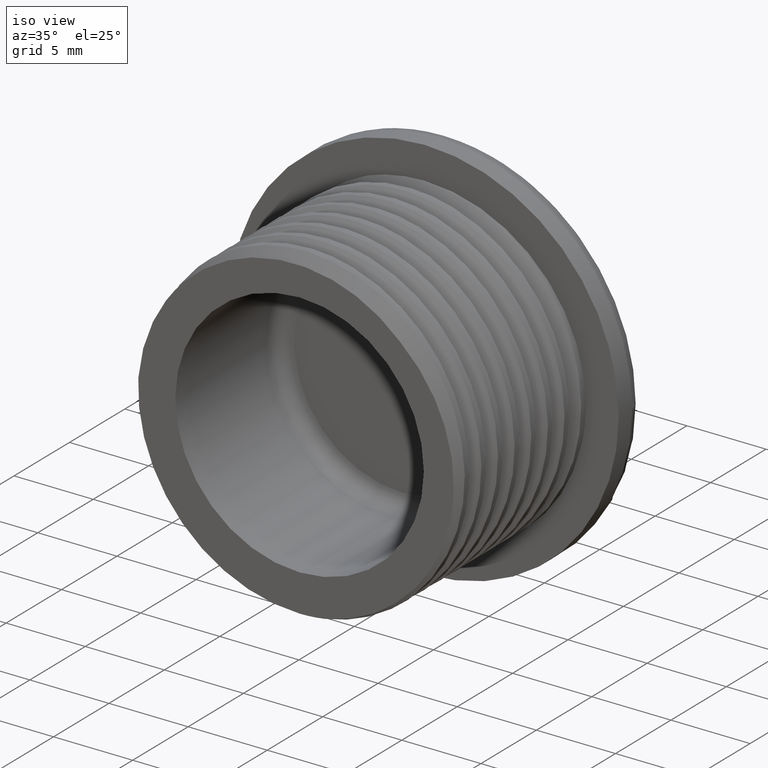
[diagram: clean part render]
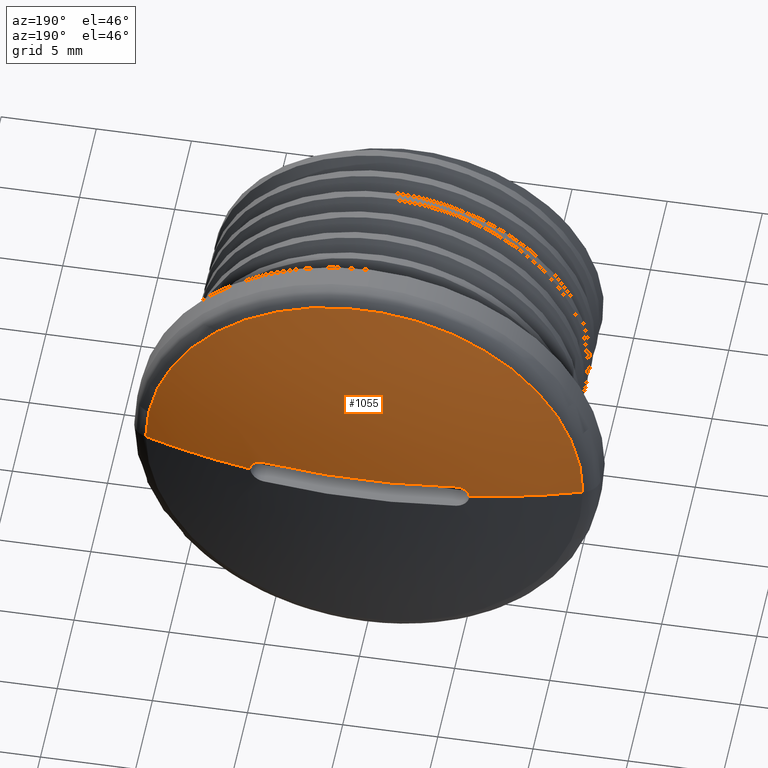
[diagram: tour spotlight — one face highlighted and labeled with its STEP entity id]
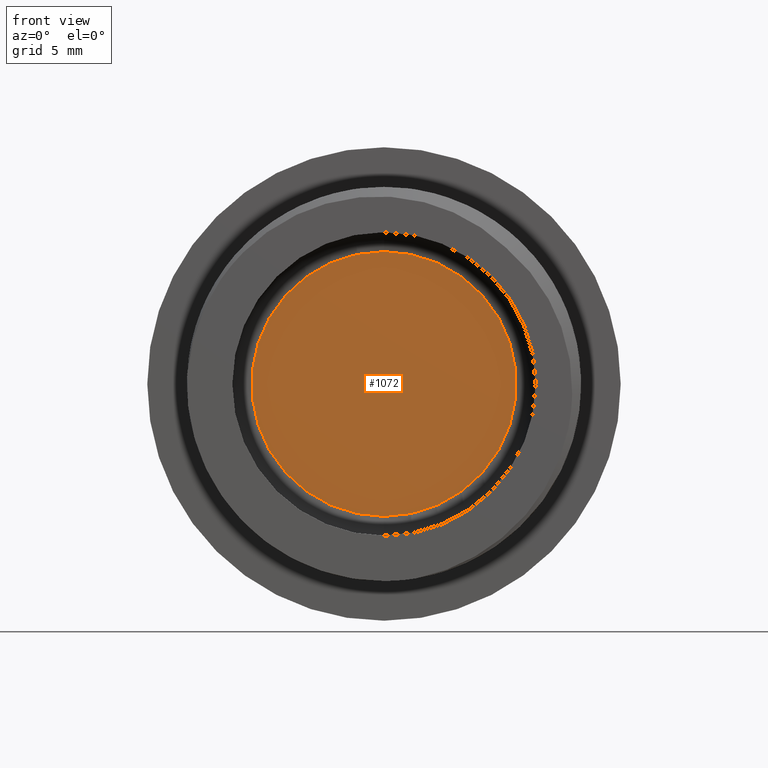
[diagram: tour spotlight — one face highlighted and labeled with its STEP entity id]
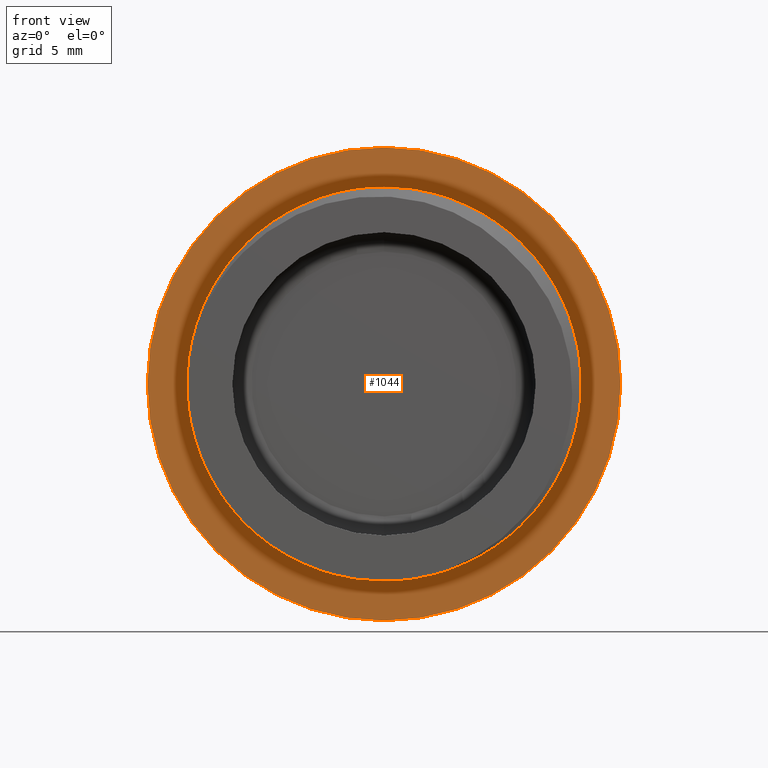
[diagram: tour spotlight — one face highlighted and labeled with its STEP entity id]
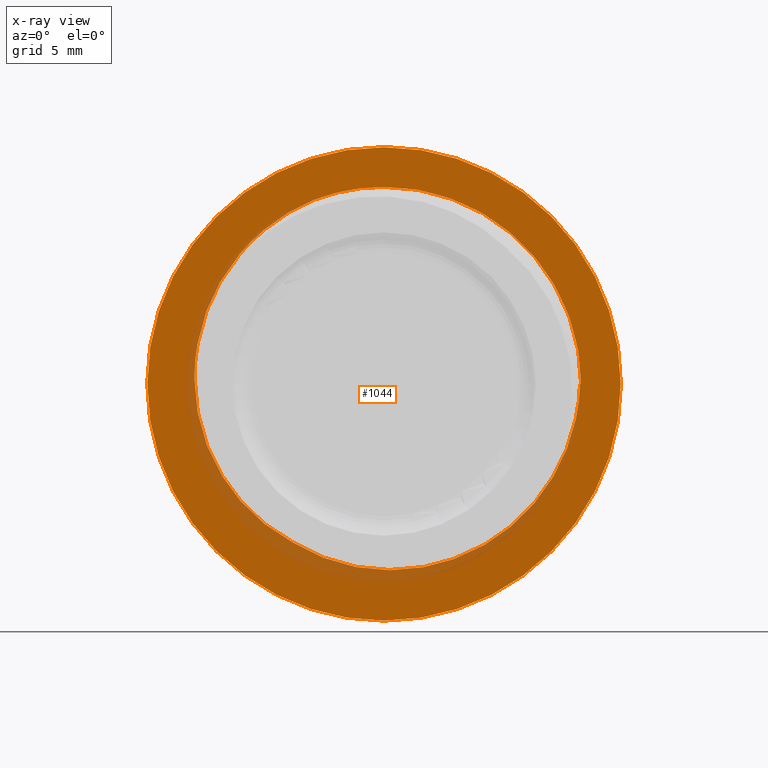
[diagram: x-ray of the same camera — body ghosted, this tour face saturated]
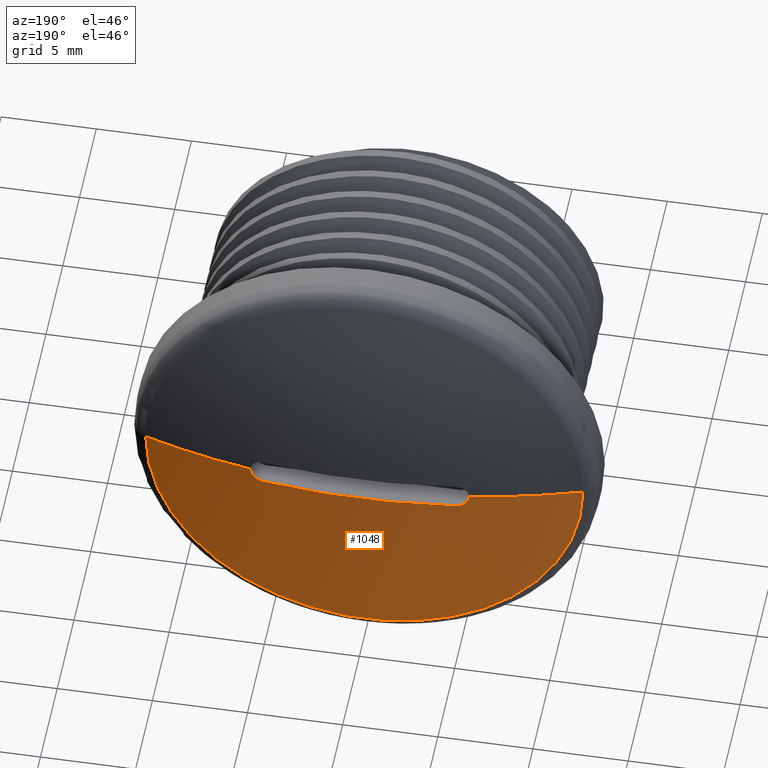
[diagram: tour spotlight — one face highlighted and labeled with its STEP entity id]
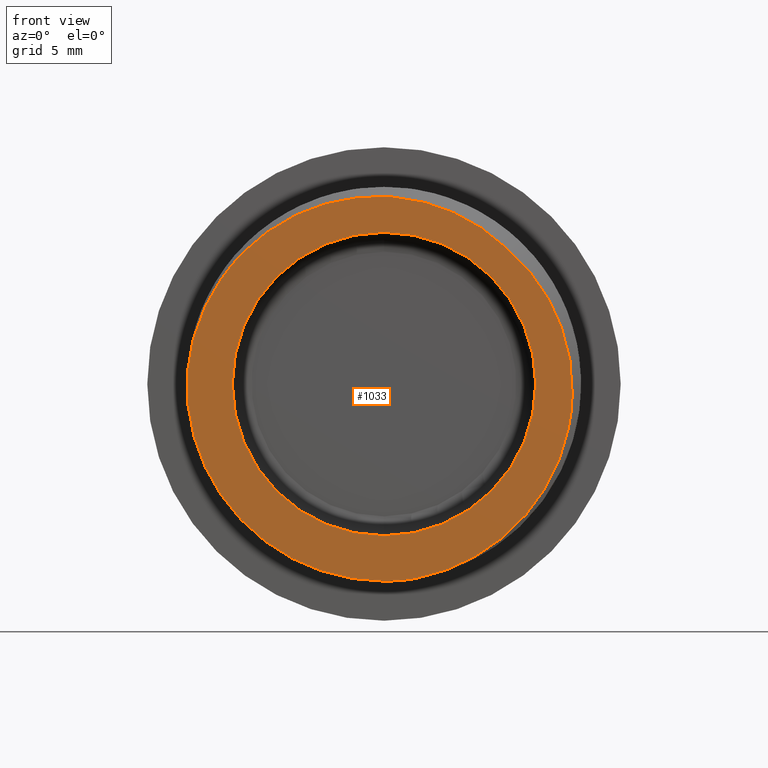
[diagram: tour spotlight — one face highlighted and labeled with its STEP entity id]
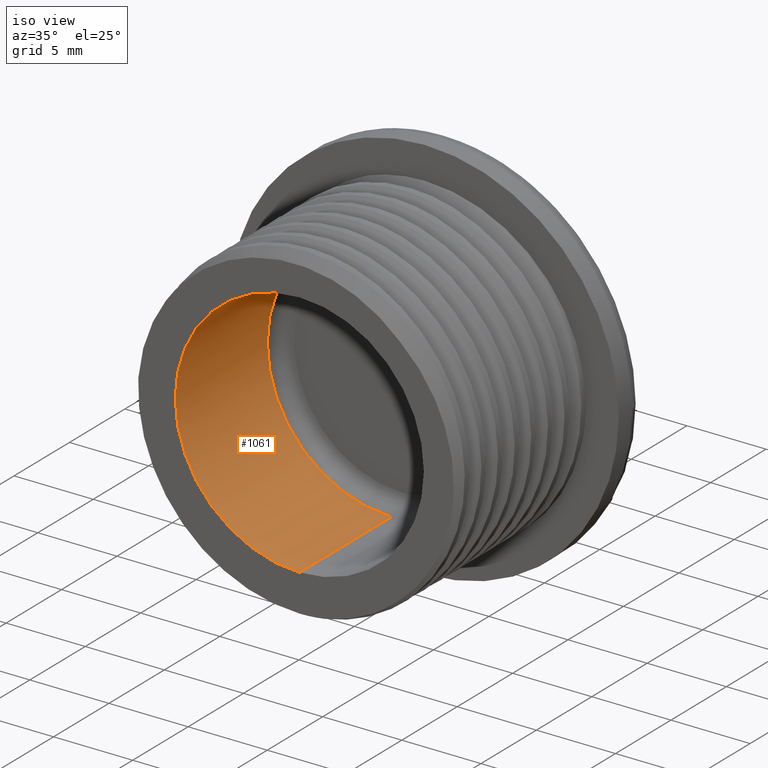
[diagram: tour spotlight — one face highlighted and labeled with its STEP entity id]
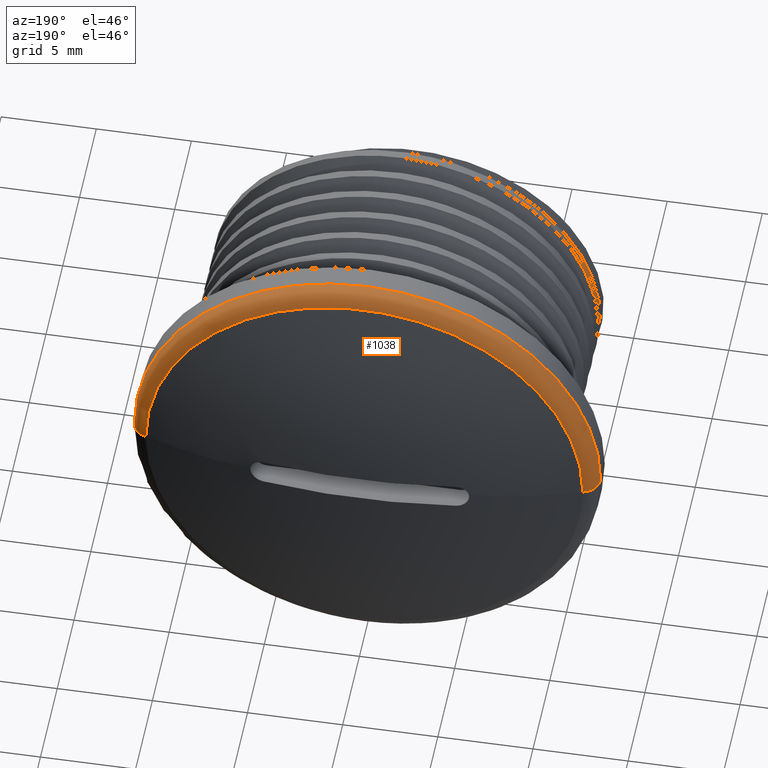
[diagram: tour spotlight — one face highlighted and labeled with its STEP entity id]
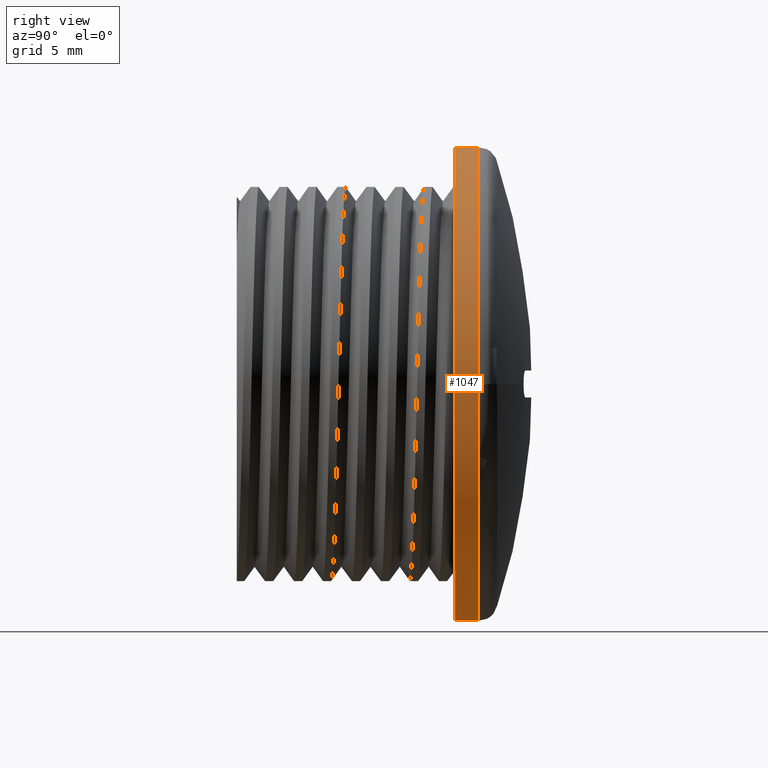
[diagram: tour spotlight — one face highlighted and labeled with its STEP entity id]
A machine part: a face-by-face anatomy tour. The part has 42 B-rep faces; the first image is the clean iso view, then the 8 largest visible faces are spotlighted one at a time (largest first), each with its STEP entity span.

Face 1 — auxiliary view, entity #1055. In plain terms, the highlighted spherical surface has radius 37.5374 mm.
Definition (entity closure, byte-faithful):
#9 = B_SPLINE_CURVE_WITH_KNOTS ( 'NONE', 3,
 ( #2383, #2389, #2385, #2386, #2387, #2388, #2402, #2404 ),
 .UNSPECIFIED., .F., .F.,
 ( 4, 2, 2, 4 ),
 ( -5.421010862427522200E-020, 0.0002746361100973320500, 0.0005492722201946641100, 0.001098544440389327100 ),
 .UNSPECIFIED. ) ;
#16 = B_SPLINE_CURVE_WITH_KNOTS ( 'NONE', 3,
 ( #2802, #2808, #2310, #2346, #2325, #2336, #2311, #2337 ),
 .UNSPECIFIED., .F., .F.,
 ( 4, 2, 2, 4 ),
 ( 8.741117365843378200E-019, 0.0002746377061504650300, 0.0005492754123009291900, 0.001098550824601857500 ),
 .UNSPECIFIED. ) ;
#439 = VERTEX_POINT ( 'NONE', #520 ) ;
#450 = VERTEX_POINT ( 'NONE', #515 ) ;
#473 = VERTEX_POINT ( 'NONE', #537 ) ;
#489 = VERTEX_POINT ( 'NONE', #523 ) ;
#496 = VERTEX_POINT ( 'NONE', #527 ) ;
#500 = VERTEX_POINT ( 'NONE', #531 ) ;
#515 = CARTESIAN_POINT ( 'NONE',  ( -5.050000000000004300, 14.99394996206813100, 0.6999999999999999600 ) ) ;
#520 = CARTESIAN_POINT ( 'NONE',  ( 11.48632900201851600, 13.54120905926517800, 0.0000000000000000000 ) ) ;
#523 = CARTESIAN_POINT ( 'NONE',  ( -5.750000000000004400, 14.89877472397167100, 1.997436665571574400E-029 ) ) ;
#527 = CARTESIAN_POINT ( 'NONE',  ( -11.48632900201851500, 13.54120905926517800, 0.0000000000000000000 ) ) ;
#531 = CARTESIAN_POINT ( 'NONE',  ( 5.749999999999996400, 14.89877472397168200, 1.521484656065916300E-029 ) ) ;
#537 = CARTESIAN_POINT ( 'NONE',  ( 5.049999999999996300, 14.99394996206813600, 0.6999999999999999600 ) ) ;
#750 = ORIENTED_EDGE ( 'NONE', *, *, #979, .T. ) ;
#780 = ORIENTED_EDGE ( 'NONE', *, *, #991, .T. ) ;
#788 = ORIENTED_EDGE ( 'NONE', *, *, #976, .T. ) ;
#797 = ORIENTED_EDGE ( 'NONE', *, *, #1000, .T. ) ;
#812 = ORIENTED_EDGE ( 'NONE', *, *, #980, .F. ) ;
#844 = ORIENTED_EDGE ( 'NONE', *, *, #982, .T. ) ;
#923 = EDGE_LOOP ( 'NONE', ( #812, #844, #780, #797, #788, #750 ) ) ;
#976 = EDGE_CURVE ( 'NONE', #450, #489, #16, .T. ) ;
#979 = EDGE_CURVE ( 'NONE', #489, #496, #2190, .T. ) ;
#980 = EDGE_CURVE ( 'NONE', #439, #496, #2200, .T. ) ;
#982 = EDGE_CURVE ( 'NONE', #439, #500, #2187, .T. ) ;
#991 = EDGE_CURVE ( 'NONE', #500, #473, #9, .T. ) ;
#1000 = EDGE_CURVE ( 'NONE', #473, #450, #2213, .T. ) ;
#1055 = ADVANCED_FACE ( 'NONE', ( #1369 ), #1359, .T. ) ;
#1359 = SPHERICAL_SURFACE ( 'NONE', #2255, 37.53743396125987200 ) ;
#1369 = FACE_OUTER_BOUND ( 'NONE', #923, .T. ) ;
#1371 = CARTESIAN_POINT ( 'NONE',  ( 0.0000000000000000000, -22.19565138556593100, 0.0000000000000000000 ) ) ;
#1373 = DIRECTION ( 'NONE',  ( 0.0000000000000000000, 0.0000000000000000000, -1.000000000000000000 ) ) ;
#1374 = DIRECTION ( 'NONE',  ( 0.0000000000000000000, 1.000000000000000000, 0.0000000000000000000 ) ) ;
#2182 = AXIS2_PLACEMENT_3D ( 'NONE', #2334, #2324, #2335 ) ;
#2187 = CIRCLE ( 'NONE', #2205, 37.53743396125987200 ) ;
#2190 = CIRCLE ( 'NONE', #2182, 37.53743396125987200 ) ;
#2200 = CIRCLE ( 'NONE', #2202, 11.48632900201851800 ) ;
#2201 = AXIS2_PLACEMENT_3D ( 'NONE', #2478, #2489, #2493 ) ;
#2202 = AXIS2_PLACEMENT_3D ( 'NONE', #2323, #2326, #2347 ) ;
#2205 = AXIS2_PLACEMENT_3D ( 'NONE', #2341, #2349, #2351 ) ;
#2213 = CIRCLE ( 'NONE', #2201, 37.53090657572691700 ) ;
#2255 = AXIS2_PLACEMENT_3D ( 'NONE', #1371, #1373, #1374 ) ;
#2310 = CARTESIAN_POINT ( 'NONE',  ( -5.232273073618525700, 14.96919251887796600, 0.6820128705458866600 ) ) ;
#2311 = CARTESIAN_POINT ( 'NONE',  ( -5.750000000000005300, 14.89877472397166300, 0.1857671333284908700 ) ) ;
#2323 = CARTESIAN_POINT ( 'NONE',  ( -6.812968123059483300E-016, 13.54120905926518300, 0.0000000000000000000 ) ) ;
#2324 = DIRECTION ( 'NONE',  ( -0.0000000000000000000, 0.0000000000000000000, 1.000000000000000000 ) ) ;
#2325 = CARTESIAN_POINT ( 'NONE',  ( -5.478921235084914800, 14.93566183505508600, 0.5606829171072058600 ) ) ;
#2326 = DIRECTION ( 'NONE',  ( -7.080503983578809200E-017, -1.000000000000000000, -0.0000000000000000000 ) ) ;
#2334 = CARTESIAN_POINT ( 'NONE',  ( 0.0000000000000000000, -22.19565138556593100, 0.0000000000000000000 ) ) ;
#2335 = DIRECTION ( 'NONE',  ( 1.000000000000000000, 0.0000000000000000000, 0.0000000000000000000 ) ) ;
#2336 = CARTESIAN_POINT ( 'NONE',  ( -5.673145568036272100, 14.90924031921996800, 0.3674842021191876400 ) ) ;
#2337 = CARTESIAN_POINT ( 'NONE',  ( -5.750000000000004400, 14.89877472397167100, 1.997436665571574400E-029 ) ) ;
#2341 = CARTESIAN_POINT ( 'NONE',  ( 0.0000000000000000000, -22.19565138556593100, 0.0000000000000000000 ) ) ;
#2346 = CARTESIAN_POINT ( 'NONE',  ( -5.401383505146733400, 14.94620649854166500, 0.6122864209398898300 ) ) ;
#2347 = DIRECTION ( 'NONE',  ( 1.000000000000000000, 0.0000000000000000000, 0.0000000000000000000 ) ) ;
#2349 = DIRECTION ( 'NONE',  ( -0.0000000000000000000, 0.0000000000000000000, 1.000000000000000000 ) ) ;
#2351 = DIRECTION ( 'NONE',  ( 1.000000000000000000, 0.0000000000000000000, 0.0000000000000000000 ) ) ;
#2383 = CARTESIAN_POINT ( 'NONE',  ( 5.749999999999996400, 14.89877472397168200, 1.521484656065916300E-029 ) ) ;
#2385 = CARTESIAN_POINT ( 'NONE',  ( 5.731612470144966700, 14.90127821214746000, 0.1840191263676079800 ) ) ;
#2386 = CARTESIAN_POINT ( 'NONE',  ( 5.660944471927684200, 14.91089699015473600, 0.3538438222538590200 ) ) ;
#2387 = CARTESIAN_POINT ( 'NONE',  ( 5.608664251736351000, 14.91801209291797800, 0.4315328247950825900 ) ) ;
#2388 = CARTESIAN_POINT ( 'NONE',  ( 5.414722743876882100, 14.94439516860195900, 0.6247260361742070800 ) ) ;
#2389 = CARTESIAN_POINT ( 'NONE',  ( 5.749999999999996400, 14.89877472397168400, 0.09286843238870312600 ) ) ;
#2402 = CARTESIAN_POINT ( 'NONE',  ( 5.234000871841741000, 14.96896436477401200, 0.7000000000000004000 ) ) ;
#2404 = CARTESIAN_POINT ( 'NONE',  ( 5.049999999999996300, 14.99394996206813600, 0.6999999999999999600 ) ) ;
#2478 = CARTESIAN_POINT ( 'NONE',  ( 3.469446951953614200E-015, -22.19565138556588100, 0.6999999999999999600 ) ) ;
#2489 = DIRECTION ( 'NONE',  ( 0.0000000000000000000, 0.0000000000000000000, 1.000000000000000000 ) ) ;
#2493 = DIRECTION ( 'NONE',  ( 1.000000000000000000, 0.0000000000000000000, 0.0000000000000000000 ) ) ;
#2802 = CARTESIAN_POINT ( 'NONE',  ( -5.050000000000004300, 14.99394996206813100, 0.6999999999999999600 ) ) ;
#2808 = CARTESIAN_POINT ( 'NONE',  ( -5.142014815519731400, 14.98145521080604500, 0.6999999999999998400 ) ) ;

Face 2 — front view, entity #1072. In plain terms, the highlighted planar face has unit normal (0, 1, 0).
Definition (entity closure, byte-faithful):
#124 = PLANE ( 'NONE',  #2297 ) ;
#128 = FACE_OUTER_BOUND ( 'NONE', #400, .T. ) ;
#133 = CARTESIAN_POINT ( 'NONE',  ( -6.849999999999992500, 9.357954256561427500, 0.0000000000000000000 ) ) ;
#134 = DIRECTION ( 'NONE',  ( 0.0000000000000000000, 1.000000000000000000, 0.0000000000000000000 ) ) ;
#135 = DIRECTION ( 'NONE',  ( 0.0000000000000000000, -0.0000000000000000000, 1.000000000000000000 ) ) ;
#400 = EDGE_LOOP ( 'NONE', ( #867, #872 ) ) ;
#415 = VERTEX_POINT ( 'NONE', #482 ) ;
#425 = VERTEX_POINT ( 'NONE', #501 ) ;
#482 = CARTESIAN_POINT ( 'NONE',  ( 4.806738686653360700E-016, 9.357954256561425800, -6.849999999999993400 ) ) ;
#501 = CARTESIAN_POINT ( 'NONE',  ( 1.380789266038640300E-015, 9.357954256561425800, 6.849999999999993400 ) ) ;
#544 = DIRECTION ( 'NONE',  ( 0.0000000000000000000, 0.0000000000000000000, -1.000000000000000000 ) ) ;
#548 = DIRECTION ( 'NONE',  ( 0.0000000000000000000, -1.000000000000000000, 0.0000000000000000000 ) ) ;
#550 = CARTESIAN_POINT ( 'NONE',  ( 4.806738686653360700E-016, 9.357954256561425800, 0.0000000000000000000 ) ) ;
#867 = ORIENTED_EDGE ( 'NONE', *, *, #1026, .T. ) ;
#872 = ORIENTED_EDGE ( 'NONE', *, *, #932, .T. ) ;
#932 = EDGE_CURVE ( 'NONE', #425, #415, #2175, .T. ) ;
#1026 = EDGE_CURVE ( 'NONE', #415, #425, #2230, .T. ) ;
#1072 = ADVANCED_FACE ( 'NONE', ( #128 ), #124, .F. ) ;
#2175 = CIRCLE ( 'NONE', #2177, 6.849999999999993400 ) ;
#2177 = AXIS2_PLACEMENT_3D ( 'NONE', #550, #548, #544 ) ;
#2230 = CIRCLE ( 'NONE', #2236, 6.849999999999993400 ) ;
#2236 = AXIS2_PLACEMENT_3D ( 'NONE', #2774, #2775, #2776 ) ;
#2297 = AXIS2_PLACEMENT_3D ( 'NONE', #133, #134, #135 ) ;
#2774 = CARTESIAN_POINT ( 'NONE',  ( 4.806738686653360700E-016, 9.357954256561425800, 0.0000000000000000000 ) ) ;
#2775 = DIRECTION ( 'NONE',  ( 0.0000000000000000000, -1.000000000000000000, 0.0000000000000000000 ) ) ;
#2776 = DIRECTION ( 'NONE',  ( 0.0000000000000000000, 0.0000000000000000000, -1.000000000000000000 ) ) ;

Face 3 — front view, entity #1044. An x-ray twin of the same camera follows (body ghosted, this face saturated) — the face is partly hidden behind the body. In plain terms, the highlighted planar face has unit normal (0, 1, 0).
Definition (entity closure, byte-faithful):
#7 = B_SPLINE_CURVE_WITH_KNOTS ( 'NONE', 3,
 ( #2352, #2405, #2425, #2426, #2427, #2438, #2429, #2434, #2431, #2435, #2436, #2437, #2439, #2432, #2433, #2440, #2430, #2456, #2458, #2446, #2455, #2457, #2451, #2447, #2448, #2449, #2459, #2450, #2464, #2441 ),
 .UNSPECIFIED., .F., .F.,
 ( 4, 2, 2, 2, 2, 2, 2, 2, 2, 2, 2, 2, 2, 2, 4 ),
 ( 0.0000000000000000000, 0.001285801333109425300, 0.002571602666218849300, 0.005143205332437698500, 0.006429006665547122800, 0.007714807998656547000, 0.009000609331765970300, 0.01028641066487539400, 0.01157221199798481900, 0.01285801333109424200, 0.01414381466420366900, 0.01542961599731309200, 0.01800121866353193400, 0.01928701999664135500, 0.02057282132975077700 ),
 .UNSPECIFIED. ) ;
#8 = B_SPLINE_CURVE_WITH_KNOTS ( 'NONE', 3,
 ( #2685, #2714, #2686, #2712, #2715, #2694, #2716, #2687, #2718, #2722, #2688, #2725, #2689, #2690, #2692, #2691, #2705, #2695, #2697, #2701, #2698, #2699, #2700, #2702, #2710, #2711, #2745, #2733, #2730, #2728, #2735, #2736, #2743, #2744 ),
 .UNSPECIFIED., .F., .F.,
 ( 4, 2, 2, 2, 2, 2, 2, 2, 2, 2, 2, 2, 2, 2, 2, 2, 4 ),
 ( 0.0000000000000000000, 0.001391907358483601000, 0.002783814716967202100, 0.004175722075450802500, 0.004871675754692603300, 0.005567629433934404200, 0.008351444150901606700, 0.009743351509385210100, 0.01113525886786881200, 0.01252716622635241400, 0.01391907358483601500, 0.01531098094331961700, 0.01670288830180321300, 0.01809479566028681500, 0.01948670301877041700, 0.02087861037725401900, 0.02227051773573762000 ),
 .UNSPECIFIED. ) ;
#396 = EDGE_LOOP ( 'NONE', ( #860, #870, #861, #873, #801 ) ) ;
#411 = VERTEX_POINT ( 'NONE', #452 ) ;
#436 = VERTEX_POINT ( 'NONE', #498 ) ;
#443 = VERTEX_POINT ( 'NONE', #533 ) ;
#452 = CARTESIAN_POINT ( 'NONE',  ( 10.19999999999999900, 11.35795425656142800, 2.485479701570880000E-015 ) ) ;
#456 = VERTEX_POINT ( 'NONE', #510 ) ;
#467 = VERTEX_POINT ( 'NONE', #513 ) ;
#483 = VERTEX_POINT ( 'NONE', #530 ) ;
#491 = VERTEX_POINT ( 'NONE', #526 ) ;
#498 = CARTESIAN_POINT ( 'NONE',  ( 1.500192328955507700E-015, 11.35795425656142800, 12.25000000000000000 ) ) ;
#510 = CARTESIAN_POINT ( 'NONE',  ( -3.631967159070320000, 11.35795425656142800, 9.531464449675853600 ) ) ;
#513 = CARTESIAN_POINT ( 'NONE',  ( 0.0000000000000000000, 11.35795425656142800, -12.25000000000000000 ) ) ;
#526 = CARTESIAN_POINT ( 'NONE',  ( -4.707902973701258100, 11.35795425656142400, -8.210927895255194300 ) ) ;
#530 = CARTESIAN_POINT ( 'NONE',  ( 10.14774097846565800, 11.35795425656142800, 2.485479701570880000E-015 ) ) ;
#533 = CARTESIAN_POINT ( 'NONE',  ( 1.249139735130300200E-015, 11.35795425656142800, 10.19999999999999900 ) ) ;
#559 = CARTESIAN_POINT ( 'NONE',  ( 0.0000000000000000000, 11.35795425656142800, 0.0000000000000000000 ) ) ;
#562 = DIRECTION ( 'NONE',  ( -0.0000000000000000000, -1.000000000000000000, -0.0000000000000000000 ) ) ;
#565 = DIRECTION ( 'NONE',  ( -1.776356839400250500E-015, 0.0000000000000000000, 1.000000000000000000 ) ) ;
#801 = ORIENTED_EDGE ( 'NONE', *, *, #997, .F. ) ;
#820 = ORIENTED_EDGE ( 'NONE', *, *, #1028, .F. ) ;
#841 = ORIENTED_EDGE ( 'NONE', *, *, #1001, .F. ) ;
#860 = ORIENTED_EDGE ( 'NONE', *, *, #1021, .T. ) ;
#861 = ORIENTED_EDGE ( 'NONE', *, *, #935, .F. ) ;
#870 = ORIENTED_EDGE ( 'NONE', *, *, #1014, .F. ) ;
#873 = ORIENTED_EDGE ( 'NONE', *, *, #996, .F. ) ;
#913 = EDGE_LOOP ( 'NONE', ( #820, #841 ) ) ;
#935 = EDGE_CURVE ( 'NONE', #411, #443, #2164, .T. ) ;
#996 = EDGE_CURVE ( 'NONE', #483, #411, #2420, .T. ) ;
#997 = EDGE_CURVE ( 'NONE', #491, #483, #7, .T. ) ;
#1001 = EDGE_CURVE ( 'NONE', #436, #467, #2198, .T. ) ;
#1014 = EDGE_CURVE ( 'NONE', #443, #456, #2258, .T. ) ;
#1021 = EDGE_CURVE ( 'NONE', #491, #456, #8, .T. ) ;
#1028 = EDGE_CURVE ( 'NONE', #467, #436, #2248, .T. ) ;
#1044 = ADVANCED_FACE ( 'NONE', ( #1839, #1866 ), #1844, .F. ) ;
#1839 = FACE_OUTER_BOUND ( 'NONE', #913, .T. ) ;
#1844 = PLANE ( 'NONE',  #2271 ) ;
#1865 = CARTESIAN_POINT ( 'NONE',  ( -10.25000000000000000, 11.35795425656142800, 0.0000000000000000000 ) ) ;
#1866 = FACE_BOUND ( 'NONE', #396, .T. ) ;
#1868 = DIRECTION ( 'NONE',  ( 0.0000000000000000000, 1.000000000000000000, 0.0000000000000000000 ) ) ;
#1869 = DIRECTION ( 'NONE',  ( 0.0000000000000000000, -0.0000000000000000000, 1.000000000000000000 ) ) ;
#2164 = CIRCLE ( 'NONE', #2165, 10.19999999999999900 ) ;
#2165 = AXIS2_PLACEMENT_3D ( 'NONE', #559, #562, #565 ) ;
#2197 = VECTOR ( 'NONE', #2424, 1000.000000000000000 ) ;
#2198 = CIRCLE ( 'NONE', #2215, 12.25000000000000000 ) ;
#2215 = AXIS2_PLACEMENT_3D ( 'NONE', #2481, #2488, #2491 ) ;
#2237 = AXIS2_PLACEMENT_3D ( 'NONE', #2788, #2782, #2778 ) ;
#2242 = AXIS2_PLACEMENT_3D ( 'NONE', #2583, #2542, #2546 ) ;
#2248 = CIRCLE ( 'NONE', #2237, 12.25000000000000000 ) ;
#2258 = CIRCLE ( 'NONE', #2242, 10.19999999999999900 ) ;
#2271 = AXIS2_PLACEMENT_3D ( 'NONE', #1865, #1868, #1869 ) ;
#2352 = CARTESIAN_POINT ( 'NONE',  ( -4.707902973701258100, 11.35795425656142400, -8.210927895255194300 ) ) ;
#2405 = CARTESIAN_POINT ( 'NONE',  ( -4.341616057970163900, 11.35795425656142200, -8.438360483509281800 ) ) ;
#2420 = LINE ( 'NONE', #2421, #2197 ) ;
#2421 = CARTESIAN_POINT ( 'NONE',  ( -10.25000000000000000, 11.35795425656142800, 2.485479701570880000E-015 ) ) ;
#2424 = DIRECTION ( 'NONE',  ( 1.000000000000000000, 0.0000000000000000000, -0.0000000000000000000 ) ) ;
#2425 = CARTESIAN_POINT ( 'NONE',  ( -3.962632363459947600, 11.35795425656142600, -8.639293735272161700 ) ) ;
#2426 = CARTESIAN_POINT ( 'NONE',  ( -3.179692513985396200, 11.35795425656142800, -8.989040433916622800 ) ) ;
#2427 = CARTESIAN_POINT ( 'NONE',  ( -2.773153339606406300, 11.35795425656142400, -9.138433812521595800 ) ) ;
#2429 = CARTESIAN_POINT ( 'NONE',  ( -0.7004818385031346100, 11.35795425656142400, -9.625884744657220400 ) ) ;
#2430 = CARTESIAN_POINT ( 'NONE',  ( 5.802086213220243300, 11.35795425656142800, -7.961830112238386500 ) ) ;
#2431 = CARTESIAN_POINT ( 'NONE',  ( 1.018788612887502800, 11.35795425656143300, -9.624351568377983700 ) ) ;
#2432 = CARTESIAN_POINT ( 'NONE',  ( 4.318023111036715100, 11.35795425656143100, -8.791143726464781600 ) ) ;
#2433 = CARTESIAN_POINT ( 'NONE',  ( 4.702202711526407300, 11.35795425656143100, -8.608128215316027000 ) ) ;
#2434 = CARTESIAN_POINT ( 'NONE',  ( 0.5896601013923590300, 11.35795425656142400, -9.646155521307614200 ) ) ;
#2435 = CARTESIAN_POINT ( 'NONE',  ( 1.864571308306936600, 11.35795425656143300, -9.525867558897916300 ) ) ;
#2436 = CARTESIAN_POINT ( 'NONE',  ( 2.282954439139217100, 11.35795425656142400, -9.449220479008834800 ) ) ;
#2437 = CARTESIAN_POINT ( 'NONE',  ( 3.110638533139547400, 11.35795425656142400, -9.240716577968584000 ) ) ;
#2438 = CARTESIAN_POINT ( 'NONE',  ( -1.541140216245513700, 11.35795425656142000, -9.498691221597248100 ) ) ;
#2439 = CARTESIAN_POINT ( 'NONE',  ( 3.522788397097084800, 11.35795425656142900, -9.107537089662409700 ) ) ;
#2440 = CARTESIAN_POINT ( 'NONE',  ( 5.444233663948583800, 11.35795425656143300, -8.193470302491624200 ) ) ;
#2441 = CARTESIAN_POINT ( 'NONE',  ( 10.14774097846565800, 11.35795425656142800, 2.485479701570880000E-015 ) ) ;
#2446 = CARTESIAN_POINT ( 'NONE',  ( 7.428510381716089100, 11.35795425656142400, -6.574138905006893900 ) ) ;
#2447 = CARTESIAN_POINT ( 'NONE',  ( 9.155143162872869700, 11.35795425656142800, -4.135454474367948700 ) ) ;
#2448 = CARTESIAN_POINT ( 'NONE',  ( 9.497886243334896500, 11.35795425656142800, -3.357712430591346400 ) ) ;
#2449 = CARTESIAN_POINT ( 'NONE',  ( 9.862221386136294400, 11.35795425656142400, -2.126426334360469500 ) ) ;
#2450 = CARTESIAN_POINT ( 'NONE',  ( 10.09390027287040000, 11.35795425656142600, -0.8577939365018455400 ) ) ;
#2451 = CARTESIAN_POINT ( 'NONE',  ( 8.490348598608125700, 11.35795425656142900, -5.237005698894971100 ) ) ;
#2455 = CARTESIAN_POINT ( 'NONE',  ( 7.713664969396860200, 11.35795425656143300, -6.258788764404053000 ) ) ;
#2456 = CARTESIAN_POINT ( 'NONE',  ( 6.490635134029576000, 11.35795425656142400, -7.448393699554769900 ) ) ;
#2457 = CARTESIAN_POINT ( 'NONE',  ( 8.243858557314663200, 11.35795425656143100, -5.591485482462264400 ) ) ;
#2458 = CARTESIAN_POINT ( 'NONE',  ( 6.818159777146265200, 11.35795425656142400, -7.168303850295473900 ) ) ;
#2459 = CARTESIAN_POINT ( 'NONE',  ( 9.958120255560775300, 11.35795425656142800, -1.704434247830726600 ) ) ;
#2464 = CARTESIAN_POINT ( 'NONE',  ( 10.13461899388311900, 11.35795425656142600, -0.4307752098891357600 ) ) ;
#2481 = CARTESIAN_POINT ( 'NONE',  ( 0.0000000000000000000, 11.35795425656142800, 0.0000000000000000000 ) ) ;
#2488 = DIRECTION ( 'NONE',  ( 0.0000000000000000000, 1.000000000000000000, 0.0000000000000000000 ) ) ;
#2491 = DIRECTION ( 'NONE',  ( 0.0000000000000000000, 0.0000000000000000000, -1.000000000000000000 ) ) ;
#2542 = DIRECTION ( 'NONE',  ( -0.0000000000000000000, -1.000000000000000000, -0.0000000000000000000 ) ) ;
#2546 = DIRECTION ( 'NONE',  ( 0.0000000000000000000, 0.0000000000000000000, 1.000000000000000000 ) ) ;
#2583 = CARTESIAN_POINT ( 'NONE',  ( 0.0000000000000000000, 11.35795425656142800, 0.0000000000000000000 ) ) ;
#2685 = CARTESIAN_POINT ( 'NONE',  ( -4.707902973701258100, 11.35795425656142400, -8.210927895255194300 ) ) ;
#2686 = CARTESIAN_POINT ( 'NONE',  ( -5.514082985925979200, 11.35795425656143300, -7.746478552648068400 ) ) ;
#2687 = CARTESIAN_POINT ( 'NONE',  ( -7.994662096752884800, 11.35795425656142400, -5.342952103790032900 ) ) ;
#2688 = CARTESIAN_POINT ( 'NONE',  ( -8.499622534592152300, 11.35795425656142400, -4.564314199271827900 ) ) ;
#2689 = CARTESIAN_POINT ( 'NONE',  ( -9.384360683046580200, 11.35795425656143100, -2.685118041672808400 ) ) ;
#2690 = CARTESIAN_POINT ( 'NONE',  ( -9.684510916252193600, 11.35795425656143100, -1.322986974938091800 ) ) ;
#2691 = CARTESIAN_POINT ( 'NONE',  ( -9.818906634151446200, 11.35795425656142400, 0.05734507657133496000 ) ) ;
#2692 = CARTESIAN_POINT ( 'NONE',  ( -9.751582480209384200, 11.35795425656142400, -0.8615790306866431000 ) ) ;
#2694 = CARTESIAN_POINT ( 'NONE',  ( -7.275171457849491900, 11.35795425656142400, -6.240863548301433600 ) ) ;
#2695 = CARTESIAN_POINT ( 'NONE',  ( -9.757894085010795100, 11.35795425656142600, 1.439856643518260900 ) ) ;
#2697 = CARTESIAN_POINT ( 'NONE',  ( -9.693724227696131700, 11.35795425656142400, 1.904637909221080300 ) ) ;
#2698 = CARTESIAN_POINT ( 'NONE',  ( -9.377392759870371500, 11.35795425656142600, 3.252196727009171600 ) ) ;
#2699 = CARTESIAN_POINT ( 'NONE',  ( -9.064618231661397000, 11.35795425656142600, 4.118350197416588400 ) ) ;
#2700 = CARTESIAN_POINT ( 'NONE',  ( -8.876946685393514600, 11.35795425656143100, 4.543440960156767800 ) ) ;
#2701 = CARTESIAN_POINT ( 'NONE',  ( -9.503363884035943300, 11.35795425656142200, 2.809501679235947100 ) ) ;
#2702 = CARTESIAN_POINT ( 'NONE',  ( -8.441705665642318800, 11.35795425656143100, 5.366400208275260700 ) ) ;
#2705 = CARTESIAN_POINT ( 'NONE',  ( -9.819873099802114400, 11.35795425656142400, 0.5176397455634060800 ) ) ;
#2710 = CARTESIAN_POINT ( 'NONE',  ( -8.197671724041001100, 11.35795425656142800, 5.758160157051358800 ) ) ;
#2711 = CARTESIAN_POINT ( 'NONE',  ( -7.658637698519645400, 11.35795425656142900, 6.503629876671597600 ) ) ;
#2712 = CARTESIAN_POINT ( 'NONE',  ( -6.262457846778293200, 11.35795425656143100, -7.196694570619609300 ) ) ;
#2714 = CARTESIAN_POINT ( 'NONE',  ( -5.120730621014582900, 11.35795425656142400, -7.993078380507213000 ) ) ;
#2715 = CARTESIAN_POINT ( 'NONE',  ( -6.618646841766016000, 11.35795425656142400, -6.891477044668462800 ) ) ;
#2716 = CARTESIAN_POINT ( 'NONE',  ( -7.578055165293208400, 11.35795425656142400, -5.894322598054818800 ) ) ;
#2718 = CARTESIAN_POINT ( 'NONE',  ( -8.127220807793731800, 11.35795425656142400, -5.153882157544036800 ) ) ;
#2722 = CARTESIAN_POINT ( 'NONE',  ( -8.379482565866805300, 11.35795425656142600, -4.764985967983792900 ) ) ;
#2725 = CARTESIAN_POINT ( 'NONE',  ( -9.060086963771063000, 11.35795425656142800, -3.546337940621477400 ) ) ;
#2728 = CARTESIAN_POINT ( 'NONE',  ( -5.651327046266545500, 11.35795425656142400, 8.412868777543693000 ) ) ;
#2730 = CARTESIAN_POINT ( 'NONE',  ( -6.374973568710141000, 11.35795425656142600, 7.840589969836787400 ) ) ;
#2733 = CARTESIAN_POINT ( 'NONE',  ( -6.721599456348443800, 11.35795425656142200, 7.525908793543592900 ) ) ;
#2735 = CARTESIAN_POINT ( 'NONE',  ( -5.271918914495733700, 11.35795425656143100, 8.673146078119948800 ) ) ;
#2736 = CARTESIAN_POINT ( 'NONE',  ( -4.477990395972173400, 11.35795425656143100, 9.142061017660934000 ) ) ;
#2743 = CARTESIAN_POINT ( 'NONE',  ( -4.061003840670403900, 11.35795425656142400, 9.351665904713671700 ) ) ;
#2744 = CARTESIAN_POINT ( 'NONE',  ( -3.631967159070320000, 11.35795425656142800, 9.531464449675853600 ) ) ;
#2745 = CARTESIAN_POINT ( 'NONE',  ( -7.363545984689256600, 11.35795425656142400, 6.857271238681303100 ) ) ;
#2778 = DIRECTION ( 'NONE',  ( 0.0000000000000000000, 0.0000000000000000000, -1.000000000000000000 ) ) ;
#2782 = DIRECTION ( 'NONE',  ( 0.0000000000000000000, 1.000000000000000000, 0.0000000000000000000 ) ) ;
#2788 = CARTESIAN_POINT ( 'NONE',  ( 0.0000000000000000000, 11.35795425656142800, 0.0000000000000000000 ) ) ;

Face 4 — auxiliary view, entity #1048. In plain terms, the highlighted spherical surface has radius 37.5374 mm.
Definition (entity closure, byte-faithful):
#13 = B_SPLINE_CURVE_WITH_KNOTS ( 'NONE', 3,
 ( #2570, #2555, #2707, #2719, #2720, #2706, #2682, #2696 ),
 .UNSPECIFIED., .F., .F.,
 ( 4, 2, 2, 4 ),
 ( 0.001098550824601857500, 0.001373143781795446800, 0.001647736738989036100, 0.002196922653376216400 ),
 .UNSPECIFIED. ) ;
#14 = B_SPLINE_CURVE_WITH_KNOTS ( 'NONE', 3,
 ( #2503, #2506, #2535, #2524, #2527, #2538, #2537, #2526 ),
 .UNSPECIFIED., .F., .F.,
 ( 4, 2, 2, 4 ),
 ( -0.001098723464346429800, -0.0008240425982598224100, -0.0005493617321732149100, 0.0000000000000000000 ),
 .UNSPECIFIED. ) ;
#405 = EDGE_LOOP ( 'NONE', ( #859, #807, #834, #853, #806, #848 ) ) ;
#439 = VERTEX_POINT ( 'NONE', #520 ) ;
#461 = VERTEX_POINT ( 'NONE', #511 ) ;
#468 = VERTEX_POINT ( 'NONE', #514 ) ;
#489 = VERTEX_POINT ( 'NONE', #523 ) ;
#496 = VERTEX_POINT ( 'NONE', #527 ) ;
#500 = VERTEX_POINT ( 'NONE', #531 ) ;
#511 = CARTESIAN_POINT ( 'NONE',  ( 5.049999999999996300, 14.99394996206814700, -0.6999999999999999600 ) ) ;
#514 = CARTESIAN_POINT ( 'NONE',  ( -5.050000000000004300, 14.99394996206814300, -0.6999999999999999600 ) ) ;
#520 = CARTESIAN_POINT ( 'NONE',  ( 11.48632900201851600, 13.54120905926517800, 0.0000000000000000000 ) ) ;
#523 = CARTESIAN_POINT ( 'NONE',  ( -5.750000000000004400, 14.89877472397167100, 1.997436665571574400E-029 ) ) ;
#527 = CARTESIAN_POINT ( 'NONE',  ( -11.48632900201851500, 13.54120905926517800, 0.0000000000000000000 ) ) ;
#531 = CARTESIAN_POINT ( 'NONE',  ( 5.749999999999996400, 14.89877472397168200, 1.521484656065916300E-029 ) ) ;
#806 = ORIENTED_EDGE ( 'NONE', *, *, #1009, .T. ) ;
#807 = ORIENTED_EDGE ( 'NONE', *, *, #1010, .F. ) ;
#834 = ORIENTED_EDGE ( 'NONE', *, *, #979, .F. ) ;
#848 = ORIENTED_EDGE ( 'NONE', *, *, #1006, .T. ) ;
#853 = ORIENTED_EDGE ( 'NONE', *, *, #1018, .T. ) ;
#859 = ORIENTED_EDGE ( 'NONE', *, *, #982, .F. ) ;
#979 = EDGE_CURVE ( 'NONE', #489, #496, #2190, .T. ) ;
#982 = EDGE_CURVE ( 'NONE', #439, #500, #2187, .T. ) ;
#1006 = EDGE_CURVE ( 'NONE', #461, #500, #14, .T. ) ;
#1009 = EDGE_CURVE ( 'NONE', #468, #461, #2272, .T. ) ;
#1010 = EDGE_CURVE ( 'NONE', #496, #439, #2275, .T. ) ;
#1018 = EDGE_CURVE ( 'NONE', #489, #468, #13, .T. ) ;
#1048 = ADVANCED_FACE ( 'NONE', ( #1876 ), #1886, .T. ) ;
#1871 = DIRECTION ( 'NONE',  ( 0.0000000000000000000, 1.000000000000000000, 0.0000000000000000000 ) ) ;
#1876 = FACE_OUTER_BOUND ( 'NONE', #405, .T. ) ;
#1879 = DIRECTION ( 'NONE',  ( 0.0000000000000000000, 0.0000000000000000000, -1.000000000000000000 ) ) ;
#1886 = SPHERICAL_SURFACE ( 'NONE', #2269, 37.53743396125987200 ) ;
#1888 = CARTESIAN_POINT ( 'NONE',  ( 0.0000000000000000000, -22.19565138556593100, 0.0000000000000000000 ) ) ;
#2182 = AXIS2_PLACEMENT_3D ( 'NONE', #2334, #2324, #2335 ) ;
#2187 = CIRCLE ( 'NONE', #2205, 37.53743396125987200 ) ;
#2190 = CIRCLE ( 'NONE', #2182, 37.53743396125987200 ) ;
#2205 = AXIS2_PLACEMENT_3D ( 'NONE', #2341, #2349, #2351 ) ;
#2240 = AXIS2_PLACEMENT_3D ( 'NONE', #2514, #2519, #2517 ) ;
#2260 = AXIS2_PLACEMENT_3D ( 'NONE', #2525, #2515, #2530 ) ;
#2269 = AXIS2_PLACEMENT_3D ( 'NONE', #1888, #1879, #1871 ) ;
#2272 = CIRCLE ( 'NONE', #2260, 37.53090657572697400 ) ;
#2275 = CIRCLE ( 'NONE', #2240, 11.48632900201851800 ) ;
#2324 = DIRECTION ( 'NONE',  ( -0.0000000000000000000, 0.0000000000000000000, 1.000000000000000000 ) ) ;
#2334 = CARTESIAN_POINT ( 'NONE',  ( 0.0000000000000000000, -22.19565138556593100, 0.0000000000000000000 ) ) ;
#2335 = DIRECTION ( 'NONE',  ( 1.000000000000000000, 0.0000000000000000000, 0.0000000000000000000 ) ) ;
#2341 = CARTESIAN_POINT ( 'NONE',  ( 0.0000000000000000000, -22.19565138556593100, 0.0000000000000000000 ) ) ;
#2349 = DIRECTION ( 'NONE',  ( -0.0000000000000000000, 0.0000000000000000000, 1.000000000000000000 ) ) ;
#2351 = DIRECTION ( 'NONE',  ( 1.000000000000000000, 0.0000000000000000000, 0.0000000000000000000 ) ) ;
#2503 = CARTESIAN_POINT ( 'NONE',  ( 5.049999999999996300, 14.99394996206814700, -0.6999999999999999600 ) ) ;
#2506 = CARTESIAN_POINT ( 'NONE',  ( 5.142014815519724300, 14.98145521080606300, -0.7000000000000000700 ) ) ;
#2514 = CARTESIAN_POINT ( 'NONE',  ( -6.812968123059483300E-016, 13.54120905926518300, 0.0000000000000000000 ) ) ;
#2515 = DIRECTION ( 'NONE',  ( -0.0000000000000000000, -0.0000000000000000000, -1.000000000000000000 ) ) ;
#2517 = DIRECTION ( 'NONE',  ( 1.000000000000000000, 0.0000000000000000000, 0.0000000000000000000 ) ) ;
#2519 = DIRECTION ( 'NONE',  ( -7.080503983578809200E-017, -1.000000000000000000, -0.0000000000000000000 ) ) ;
#2524 = CARTESIAN_POINT ( 'NONE',  ( 5.401383505146726300, 14.94620649854167000, -0.6122864209398905000 ) ) ;
#2525 = CARTESIAN_POINT ( 'NONE',  ( 0.0000000000000000000, -22.19565138556593100, -0.6999999999999999600 ) ) ;
#2526 = CARTESIAN_POINT ( 'NONE',  ( 5.749999999999996400, 14.89877472397168200, 1.521484656065916300E-029 ) ) ;
#2527 = CARTESIAN_POINT ( 'NONE',  ( 5.478921235084907700, 14.93566183505508600, -0.5606829171072067500 ) ) ;
#2530 = DIRECTION ( 'NONE',  ( 1.000000000000000000, 3.512811072341745600E-015, 0.0000000000000000000 ) ) ;
#2535 = CARTESIAN_POINT ( 'NONE',  ( 5.232273073618517700, 14.96919251887797000, -0.6820128705458870000 ) ) ;
#2537 = CARTESIAN_POINT ( 'NONE',  ( 5.749999999999997300, 14.89877472397168200, -0.1857671333284903200 ) ) ;
#2538 = CARTESIAN_POINT ( 'NONE',  ( 5.673145568036264100, 14.90924031921996700, -0.3674842021191887500 ) ) ;
#2555 = CARTESIAN_POINT ( 'NONE',  ( -5.750000000000002700, 14.89877472397166300, -0.09286843238870312600 ) ) ;
#2570 = CARTESIAN_POINT ( 'NONE',  ( -5.750000000000004400, 14.89877472397167100, 1.997436665571574400E-029 ) ) ;
#2682 = CARTESIAN_POINT ( 'NONE',  ( -5.234000871841750800, 14.96896436477402800, -0.7000000000000000700 ) ) ;
#2696 = CARTESIAN_POINT ( 'NONE',  ( -5.050000000000004300, 14.99394996206814300, -0.6999999999999999600 ) ) ;
#2706 = CARTESIAN_POINT ( 'NONE',  ( -5.414722743876893700, 14.94439516860196800, -0.6247260361742070800 ) ) ;
#2707 = CARTESIAN_POINT ( 'NONE',  ( -5.731612470144972900, 14.90127821214745700, -0.1840191263676089500 ) ) ;
#2719 = CARTESIAN_POINT ( 'NONE',  ( -5.660944471927693100, 14.91089699015473100, -0.3538438222538595700 ) ) ;
#2720 = CARTESIAN_POINT ( 'NONE',  ( -5.608664251736358100, 14.91801209291797800, -0.4315328247950829300 ) ) ;

Face 5 — front view, entity #1033. In plain terms, the highlighted planar face has unit normal (-0, 1, 0).
Definition (entity closure, byte-faithful):
#10 = B_SPLINE_CURVE_WITH_KNOTS ( 'NONE', 3,
 ( #2428, #2423, #2452, #2467, #2453, #2460, #2454, #2442, #2461, #2462, #2463, #2465, #2443, #2444, #2445, #2466, #2468, #2484, #2475, #2480, #2474, #2494, #2492, #2482, #2485, #2469, #2496, #2470, #2473, #2471, #2472, #2483 ),
 .UNSPECIFIED., .F., .F.,
 ( 4, 2, 2, 2, 2, 2, 2, 2, 2, 2, 2, 2, 2, 2, 2, 4 ),
 ( 0.0000000000000000000, 0.001390066759566230400, 0.002780133519132460700, 0.004170200278698688000, 0.004865233658481801300, 0.005560267038264913600, 0.008340400557397365700, 0.009730467316963593800, 0.01112053407652982000, 0.01251060083609604700, 0.01390066759566227000, 0.01529073435522849600, 0.01668080111479472100, 0.01807086787436094600, 0.01946093463392717400, 0.02224106815305962000 ),
 .UNSPECIFIED. ) ;
#15 = B_SPLINE_CURVE_WITH_KNOTS ( 'NONE', 3,
 ( #2708, #2709, #2737, #2729, #2750, #2731, #2738, #2746, #2747, #2748, #2740, #2749, #2742, #2741, #2732, #2734, #2751, #2726, #2727, #2757, #2762, #2758, #2759, #2753, #2760, #2752, #2754, #2755, #2763, #2756 ),
 .UNSPECIFIED., .F., .F.,
 ( 4, 2, 2, 2, 2, 2, 2, 2, 2, 2, 2, 2, 2, 2, 4 ),
 ( 2.059004216449140700E-014, 0.001388609237331594100, 0.002777218474642597900, 0.005554436949264606400, 0.008331655423886611900, 0.009720264661197618500, 0.01110887389850862500, 0.01249748313581963000, 0.01388609237313063500, 0.01527470161044163800, 0.01596900622909714100, 0.01666331084775264300, 0.01805192008506364600, 0.01944052932237464900, 0.02221774779699665900 ),
 .UNSPECIFIED. ) ;
#389 = EDGE_LOOP ( 'NONE', ( #875, #863, #826, #851 ) ) ;
#393 = EDGE_LOOP ( 'NONE', ( #858, #865 ) ) ;
#410 = VERTEX_POINT ( 'NONE', #460 ) ;
#419 = VERTEX_POINT ( 'NONE', #462 ) ;
#420 = VERTEX_POINT ( 'NONE', #463 ) ;
#421 = VERTEX_POINT ( 'NONE', #464 ) ;
#428 = VERTEX_POINT ( 'NONE', #472 ) ;
#435 = VERTEX_POINT ( 'NONE', #497 ) ;
#460 = CARTESIAN_POINT ( 'NONE',  ( 0.0000000000000000000, 0.05795425656142730300, -7.849999999999999600 ) ) ;
#462 = CARTESIAN_POINT ( 'NONE',  ( -10.18656562038012200, 0.05795425656095611700, 0.5233362797377170100 ) ) ;
#463 = CARTESIAN_POINT ( 'NONE',  ( 1.603057064054813400, 0.05795425656142383400, -10.07324218161084200 ) ) ;
#464 = CARTESIAN_POINT ( 'NONE',  ( 0.0000000000000000000, 0.05795425656142383400, -10.19999999999999900 ) ) ;
#472 = CARTESIAN_POINT ( 'NONE',  ( 9.613477373306721400E-016, 0.05795425656142730300, 7.849999999999999600 ) ) ;
#497 = CARTESIAN_POINT ( 'NONE',  ( 6.317194518068851600, 0.05795425656142725500, 7.048172864774664400 ) ) ;
#545 = DIRECTION ( 'NONE',  ( 0.0000000000000000000, -1.000000000000000000, -0.0000000000000000000 ) ) ;
#554 = CARTESIAN_POINT ( 'NONE',  ( 0.0000000000000000000, 0.05795425656142730300, 0.0000000000000000000 ) ) ;
#555 = DIRECTION ( 'NONE',  ( 0.0000000000000000000, 0.0000000000000000000, 1.000000000000000000 ) ) ;
#826 = ORIENTED_EDGE ( 'NONE', *, *, #998, .F. ) ;
#851 = ORIENTED_EDGE ( 'NONE', *, *, #1022, .F. ) ;
#858 = ORIENTED_EDGE ( 'NONE', *, *, #1015, .F. ) ;
#863 = ORIENTED_EDGE ( 'NONE', *, *, #975, .T. ) ;
#865 = ORIENTED_EDGE ( 'NONE', *, *, #930, .F. ) ;
#875 = ORIENTED_EDGE ( 'NONE', *, *, #992, .T. ) ;
#930 = EDGE_CURVE ( 'NONE', #428, #410, #2169, .T. ) ;
#975 = EDGE_CURVE ( 'NONE', #421, #420, #2199, .T. ) ;
#992 = EDGE_CURVE ( 'NONE', #419, #421, #2210, .T. ) ;
#998 = EDGE_CURVE ( 'NONE', #435, #420, #10, .T. ) ;
#1015 = EDGE_CURVE ( 'NONE', #410, #428, #2234, .T. ) ;
#1022 = EDGE_CURVE ( 'NONE', #419, #435, #15, .T. ) ;
#1033 = ADVANCED_FACE ( 'NONE', ( #1995, #1990 ), #2012, .F. ) ;
#1990 = FACE_BOUND ( 'NONE', #393, .T. ) ;
#1995 = FACE_OUTER_BOUND ( 'NONE', #389, .T. ) ;
#1998 = CARTESIAN_POINT ( 'NONE',  ( -13.71610467988200500, 0.05795425656142730300, -17.00000000000000000 ) ) ;
#1999 = DIRECTION ( 'NONE',  ( -0.0000000000000000000, 1.000000000000000000, 0.0000000000000000000 ) ) ;
#2004 = DIRECTION ( 'NONE',  ( 0.0000000000000000000, -0.0000000000000000000, 1.000000000000000000 ) ) ;
#2012 = PLANE ( 'NONE',  #2241 ) ;
#2161 = AXIS2_PLACEMENT_3D ( 'NONE', #554, #545, #555 ) ;
#2169 = CIRCLE ( 'NONE', #2161, 7.849999999999999600 ) ;
#2188 = AXIS2_PLACEMENT_3D ( 'NONE', #2412, #2401, #2403 ) ;
#2199 = CIRCLE ( 'NONE', #2219, 10.19999999999999900 ) ;
#2210 = CIRCLE ( 'NONE', #2188, 10.19999999999999900 ) ;
#2219 = AXIS2_PLACEMENT_3D ( 'NONE', #2316, #2327, #2333 ) ;
#2234 = CIRCLE ( 'NONE', #2274, 7.849999999999999600 ) ;
#2241 = AXIS2_PLACEMENT_3D ( 'NONE', #1998, #1999, #2004 ) ;
#2274 = AXIS2_PLACEMENT_3D ( 'NONE', #2563, #2560, #2547 ) ;
#2316 = CARTESIAN_POINT ( 'NONE',  ( 0.0000000000000000000, 0.05795425656142383400, 0.0000000000000000000 ) ) ;
#2327 = DIRECTION ( 'NONE',  ( 0.0000000000000000000, -1.000000000000000000, -0.0000000000000000000 ) ) ;
#2333 = DIRECTION ( 'NONE',  ( 0.0000000000000000000, 0.0000000000000000000, 1.000000000000000000 ) ) ;
#2401 = DIRECTION ( 'NONE',  ( 0.0000000000000000000, -1.000000000000000000, -0.0000000000000000000 ) ) ;
#2403 = DIRECTION ( 'NONE',  ( 0.0000000000000000000, 0.0000000000000000000, 1.000000000000000000 ) ) ;
#2412 = CARTESIAN_POINT ( 'NONE',  ( 0.0000000000000000000, 0.05795425656142383400, 0.0000000000000000000 ) ) ;
#2423 = CARTESIAN_POINT ( 'NONE',  ( 6.674474410609919400, 0.05795425656142725500, 6.748810124204947400 ) ) ;
#2428 = CARTESIAN_POINT ( 'NONE',  ( 6.317194518068851600, 0.05795425656142725500, 7.048172864774664400 ) ) ;
#2442 = CARTESIAN_POINT ( 'NONE',  ( 8.932412742002494400, 0.05795425656142735900, 3.563811998795362300 ) ) ;
#2443 = CARTESIAN_POINT ( 'NONE',  ( 9.736805195967704700, 0.05795425656142720600, 0.6790590090325723200 ) ) ;
#2444 = CARTESIAN_POINT ( 'NONE',  ( 9.745762920571676700, 0.05795425656142722000, -0.7137436231175734400 ) ) ;
#2445 = CARTESIAN_POINT ( 'NONE',  ( 9.715709982621517000, 0.05795425656142452800, -1.178304884803551600 ) ) ;
#2452 = CARTESIAN_POINT ( 'NONE',  ( 7.006540365249747100, 0.05795425656142719900, 6.425269397090897200 ) ) ;
#2453 = CARTESIAN_POINT ( 'NONE',  ( 7.907848071113696700, 0.05795425656142519400, 5.360704870757207800 ) ) ;
#2454 = CARTESIAN_POINT ( 'NONE',  ( 8.639542928553359100, 0.05795425656142735900, 4.188595305786403600 ) ) ;
#2460 = CARTESIAN_POINT ( 'NONE',  ( 8.415217492546345200, 0.05795425656142519400, 4.589685618854364400 ) ) ;
#2461 = CARTESIAN_POINT ( 'NONE',  ( 9.022738411484731100, 0.05795425656142756000, 3.351678128850419800 ) ) ;
#2462 = CARTESIAN_POINT ( 'NONE',  ( 9.188521547255390900, 0.05795425656142756700, 2.919519975309571500 ) ) ;
#2463 = CARTESIAN_POINT ( 'NONE',  ( 9.264233652902241500, 0.05795425656142747000, 2.698568466463199000 ) ) ;
#2465 = CARTESIAN_POINT ( 'NONE',  ( 9.600238087257176600, 0.05795425656142746300, 1.587770356257651500 ) ) ;
#2466 = CARTESIAN_POINT ( 'NONE',  ( 9.592384912841996700, 0.05795425656142452100, -2.090354998768462600 ) ) ;
#2467 = CARTESIAN_POINT ( 'NONE',  ( 7.622873655357375700, 0.05795425656142719200, 5.732353199566976100 ) ) ;
#2468 = CARTESIAN_POINT ( 'NONE',  ( 9.499160182648733300, 0.05795425656142733100, -2.540584916173980600 ) ) ;
#2469 = CARTESIAN_POINT ( 'NONE',  ( 6.149563006429915800, 0.05795425656142733100, -7.942048074763007100 ) ) ;
#2470 = CARTESIAN_POINT ( 'NONE',  ( 5.024119329546084400, 0.05795425656142737900, -8.750039545897921700 ) ) ;
#2471 = CARTESIAN_POINT ( 'NONE',  ( 3.386253335539385600, 0.05795425656142605400, -9.602232226613177000 ) ) ;
#2472 = CARTESIAN_POINT ( 'NONE',  ( 2.518072037399489400, 0.05795425656142730300, -9.897544258043417600 ) ) ;
#2473 = CARTESIAN_POINT ( 'NONE',  ( 4.620941277751124500, 0.05795425656142604700, -8.986653329778960100 ) ) ;
#2474 = CARTESIAN_POINT ( 'NONE',  ( 8.503314804623149900, 0.05795425656142736600, -5.121578338268470500 ) ) ;
#2475 = CARTESIAN_POINT ( 'NONE',  ( 9.090502252957390900, 0.05795425656142758800, -3.870410631682777300 ) ) ;
#2480 = CARTESIAN_POINT ( 'NONE',  ( 8.717854396400060300, 0.05795425656142757400, -4.715169713535796200 ) ) ;
#2482 = CARTESIAN_POINT ( 'NONE',  ( 7.150770022417454200, 0.05795425656142732400, -6.992739560088735700 ) ) ;
#2483 = CARTESIAN_POINT ( 'NONE',  ( 1.603057064054813400, 0.05795425656142383400, -10.07324218161084200 ) ) ;
#2484 = CARTESIAN_POINT ( 'NONE',  ( 9.248973731431963300, 0.05795425656142731000, -3.429341992209210800 ) ) ;
#2485 = CARTESIAN_POINT ( 'NONE',  ( 6.830637563808041400, 0.05795425656142732400, -7.324649150559870300 ) ) ;
#2492 = CARTESIAN_POINT ( 'NONE',  ( 7.747157691177316800, 0.05795425656142733800, -6.279010771256754900 ) ) ;
#2494 = CARTESIAN_POINT ( 'NONE',  ( 8.018507794268865400, 0.05795425656142737900, -5.902851957666415600 ) ) ;
#2496 = CARTESIAN_POINT ( 'NONE',  ( 5.788441551742275600, 0.05795425656142737200, -8.227333394252987400 ) ) ;
#2547 = DIRECTION ( 'NONE',  ( 0.0000000000000000000, 0.0000000000000000000, 1.000000000000000000 ) ) ;
#2560 = DIRECTION ( 'NONE',  ( 0.0000000000000000000, -1.000000000000000000, -0.0000000000000000000 ) ) ;
#2563 = CARTESIAN_POINT ( 'NONE',  ( 0.0000000000000000000, 0.05795425656142730300, 0.0000000000000000000 ) ) ;
#2708 = CARTESIAN_POINT ( 'NONE',  ( -10.18656562038012200, 0.05795425656095611700, 0.5233362797377170100 ) ) ;
#2709 = CARTESIAN_POINT ( 'NONE',  ( -10.14834647123449900, 0.05795425656142734500, 0.9870741306288152200 ) ) ;
#2726 = CARTESIAN_POINT ( 'NONE',  ( -0.8309047194893747200, 0.05795425656142732400, 9.705917357706145100 ) ) ;
#2727 = CARTESIAN_POINT ( 'NONE',  ( -0.3713063693968810000, 0.05795425656142707400, 9.719689055665398300 ) ) ;
#2729 = CARTESIAN_POINT ( 'NONE',  ( -9.876195091242868400, 0.05795425656142709500, 2.348864636979476100 ) ) ;
#2731 = CARTESIAN_POINT ( 'NONE',  ( -9.258271239029527400, 0.05795425656142708800, 4.091903458858982200 ) ) ;
#2732 = CARTESIAN_POINT ( 'NONE',  ( -3.098833172533631300, 0.05795425656142713000, 9.317102320719794100 ) ) ;
#2734 = CARTESIAN_POINT ( 'NONE',  ( -2.197762493977634300, 0.05795425656142710900, 9.537556667623846400 ) ) ;
#2737 = CARTESIAN_POINT ( 'NONE',  ( -10.07845531759233300, 0.05795425656142709500, 1.444895011663543500 ) ) ;
#2738 = CARTESIAN_POINT ( 'NONE',  ( -8.821974122272040500, 0.05795425656142737200, 4.902249268493934100 ) ) ;
#2740 = CARTESIAN_POINT ( 'NONE',  ( -5.605506540633678400, 0.05795425656142644300, 8.174615611166370100 ) ) ;
#2741 = CARTESIAN_POINT ( 'NONE',  ( -3.541351120093578800, 0.05795425656142731000, 9.174767264028144400 ) ) ;
#2742 = CARTESIAN_POINT ( 'NONE',  ( -4.394066318926706000, 0.05795425656142732400, 8.833113725514982300 ) ) ;
#2746 = CARTESIAN_POINT ( 'NONE',  ( -7.723743727062991800, 0.05795425656142735200, 6.402051880658205200 ) ) ;
#2747 = CARTESIAN_POINT ( 'NONE',  ( -7.085837563908501800, 0.05795425656142729600, 7.061612633623905600 ) ) ;
#2748 = CARTESIAN_POINT ( 'NONE',  ( -5.993941595097476600, 0.05795425656142731700, 7.913560366471849700 ) ) ;
#2749 = CARTESIAN_POINT ( 'NONE',  ( -4.806936772126293900, 0.05795425656142642200, 8.633168392272304800 ) ) ;
#2750 = CARTESIAN_POINT ( 'NONE',  ( -9.742804352131491500, 0.05795425656142708800, 2.796848590578541800 ) ) ;
#2751 = CARTESIAN_POINT ( 'NONE',  ( -1.744137603394137600, 0.05795425656142732400, 9.614902478984220100 ) ) ;
#2752 = CARTESIAN_POINT ( 'NONE',  ( 3.234526944875082000, 0.05795425656142695600, 9.042233419356016100 ) ) ;
#2753 = CARTESIAN_POINT ( 'NONE',  ( 1.920512213460407100, 0.05795425656142679700, 9.457808278895424100 ) ) ;
#2754 = CARTESIAN_POINT ( 'NONE',  ( 3.665034770243175800, 0.05795425656142712300, 8.858922125241967600 ) ) ;
#2755 = CARTESIAN_POINT ( 'NONE',  ( 4.897189320494503000, 0.05795425656142712300, 8.224655885838675600 ) ) ;
#2756 = CARTESIAN_POINT ( 'NONE',  ( 6.317194518068851600, 0.05795425656142725500, 7.048172864774664400 ) ) ;
#2757 = CARTESIAN_POINT ( 'NONE',  ( 0.3227332761898446000, 0.05795425656142708800, 9.690941615203108500 ) ) ;
#2758 = CARTESIAN_POINT ( 'NONE',  ( 1.015336854745431100, 0.05795425656142631100, 9.620086041708493200 ) ) ;
#2759 = CARTESIAN_POINT ( 'NONE',  ( 1.243159823300727700, 0.05795425656142679700, 9.585534024729554400 ) ) ;
#2760 = CARTESIAN_POINT ( 'NONE',  ( 2.363956133228104900, 0.05795425656142697000, 9.340686900049634600 ) ) ;
#2762 = CARTESIAN_POINT ( 'NONE',  ( 0.5555251504277644000, 0.05795425656142631800, 9.672796960078665400 ) ) ;
#2763 = CARTESIAN_POINT ( 'NONE',  ( 5.644914962621658800, 0.05795425656142719900, 7.692405405196367100 ) ) ;

Face 6 — iso view, entity #1061. In plain terms, the highlighted cylindrical surface (partial cylindrical patch) has radius 7.85 mm, axis along (-0, -1, -0).
Definition (entity closure, byte-faithful):
#410 = VERTEX_POINT ( 'NONE', #460 ) ;
#422 = VERTEX_POINT ( 'NONE', #476 ) ;
#428 = VERTEX_POINT ( 'NONE', #472 ) ;
#448 = VERTEX_POINT ( 'NONE', #508 ) ;
#460 = CARTESIAN_POINT ( 'NONE',  ( 0.0000000000000000000, 0.05795425656142730300, -7.849999999999999600 ) ) ;
#472 = CARTESIAN_POINT ( 'NONE',  ( 9.613477373306721400E-016, 0.05795425656142730300, 7.849999999999999600 ) ) ;
#476 = CARTESIAN_POINT ( 'NONE',  ( 4.806738686653360700E-016, 8.357954256561420400, -7.849999999999999600 ) ) ;
#508 = CARTESIAN_POINT ( 'NONE',  ( 1.442021605996008100E-015, 8.357954256561420400, 7.849999999999999600 ) ) ;
#542 = DIRECTION ( 'NONE',  ( 0.0000000000000000000, 0.0000000000000000000, -1.000000000000000000 ) ) ;
#545 = DIRECTION ( 'NONE',  ( 0.0000000000000000000, -1.000000000000000000, -0.0000000000000000000 ) ) ;
#546 = CARTESIAN_POINT ( 'NONE',  ( 0.0000000000000000000, -0.1420457434385714900, -7.849999999999999600 ) ) ;
#547 = DIRECTION ( 'NONE',  ( -0.0000000000000000000, -1.000000000000000000, -0.0000000000000000000 ) ) ;
#549 = LINE ( 'NONE', #546, #2163 ) ;
#552 = CARTESIAN_POINT ( 'NONE',  ( 0.0000000000000000000, 8.357954256561420400, 0.0000000000000000000 ) ) ;
#553 = DIRECTION ( 'NONE',  ( -0.0000000000000000000, -1.000000000000000000, -0.0000000000000000000 ) ) ;
#554 = CARTESIAN_POINT ( 'NONE',  ( 0.0000000000000000000, 0.05795425656142730300, 0.0000000000000000000 ) ) ;
#555 = DIRECTION ( 'NONE',  ( 0.0000000000000000000, 0.0000000000000000000, 1.000000000000000000 ) ) ;
#556 = DIRECTION ( 'NONE',  ( -0.0000000000000000000, -1.000000000000000000, -0.0000000000000000000 ) ) ;
#561 = CARTESIAN_POINT ( 'NONE',  ( 9.613477373306721400E-016, -0.1420457434385714900, 7.849999999999999600 ) ) ;
#563 = LINE ( 'NONE', #561, #2166 ) ;
#693 = ORIENTED_EDGE ( 'NONE', *, *, #931, .F. ) ;
#694 = ORIENTED_EDGE ( 'NONE', *, *, #936, .T. ) ;
#697 = ORIENTED_EDGE ( 'NONE', *, *, #929, .F. ) ;
#698 = ORIENTED_EDGE ( 'NONE', *, *, #930, .T. ) ;
#888 = EDGE_LOOP ( 'NONE', ( #697, #694, #698, #693 ) ) ;
#929 = EDGE_CURVE ( 'NONE', #448, #422, #2159, .T. ) ;
#930 = EDGE_CURVE ( 'NONE', #428, #410, #2169, .T. ) ;
#931 = EDGE_CURVE ( 'NONE', #422, #410, #549, .T. ) ;
#936 = EDGE_CURVE ( 'NONE', #448, #428, #563, .T. ) ;
#1061 = ADVANCED_FACE ( 'NONE', ( #1431 ), #1396, .F. ) ;
#1385 = CARTESIAN_POINT ( 'NONE',  ( 0.0000000000000000000, -0.1420457434385714900, 0.0000000000000000000 ) ) ;
#1396 = CYLINDRICAL_SURFACE ( 'NONE', #2296, 7.849999999999999600 ) ;
#1397 = DIRECTION ( 'NONE',  ( -0.0000000000000000000, -1.000000000000000000, -0.0000000000000000000 ) ) ;
#1430 = DIRECTION ( 'NONE',  ( 0.0000000000000000000, 0.0000000000000000000, -1.000000000000000000 ) ) ;
#1431 = FACE_OUTER_BOUND ( 'NONE', #888, .T. ) ;
#2159 = CIRCLE ( 'NONE', #2174, 7.849999999999999600 ) ;
#2161 = AXIS2_PLACEMENT_3D ( 'NONE', #554, #545, #555 ) ;
#2163 = VECTOR ( 'NONE', #547, 1000.000000000000000 ) ;
#2166 = VECTOR ( 'NONE', #556, 1000.000000000000000 ) ;
#2169 = CIRCLE ( 'NONE', #2161, 7.849999999999999600 ) ;
#2174 = AXIS2_PLACEMENT_3D ( 'NONE', #552, #553, #542 ) ;
#2296 = AXIS2_PLACEMENT_3D ( 'NONE', #1385, #1397, #1430 ) ;

Face 7 — auxiliary view, entity #1038. In plain terms, the highlighted toroidal blend (fillet) surface has major radius 11.25 mm and minor (blend) radius 1 mm.
Definition (entity closure, byte-faithful):
#20 = CARTESIAN_POINT ( 'NONE',  ( 0.0000000000000000000, 12.56953596464697900, 0.0000000000000000000 ) ) ;
#21 = DIRECTION ( 'NONE',  ( -0.0000000000000000000, -1.000000000000000000, -0.0000000000000000000 ) ) ;
#22 = DIRECTION ( 'NONE',  ( 0.0000000000000000000, 0.0000000000000000000, -1.000000000000000000 ) ) ;
#416 = VERTEX_POINT ( 'NONE', #495 ) ;
#439 = VERTEX_POINT ( 'NONE', #520 ) ;
#447 = VERTEX_POINT ( 'NONE', #506 ) ;
#490 = VERTEX_POINT ( 'NONE', #525 ) ;
#495 = CARTESIAN_POINT ( 'NONE',  ( 1.500192328955507700E-015, 12.56953596464697900, 12.25000000000000000 ) ) ;
#496 = VERTEX_POINT ( 'NONE', #527 ) ;
#506 = CARTESIAN_POINT ( 'NONE',  ( 12.24999999999999800, 12.56953596464697900, 0.0000000000000000000 ) ) ;
#520 = CARTESIAN_POINT ( 'NONE',  ( 11.48632900201851600, 13.54120905926517800, 0.0000000000000000000 ) ) ;
#525 = CARTESIAN_POINT ( 'NONE',  ( -12.24999999999999800, 12.56953596464697900, 1.500192328955507500E-015 ) ) ;
#527 = CARTESIAN_POINT ( 'NONE',  ( -11.48632900201851500, 13.54120905926517800, 0.0000000000000000000 ) ) ;
#766 = ORIENTED_EDGE ( 'NONE', *, *, #1003, .T. ) ;
#798 = ORIENTED_EDGE ( 'NONE', *, *, #981, .F. ) ;
#813 = ORIENTED_EDGE ( 'NONE', *, *, #962, .F. ) ;
#850 = ORIENTED_EDGE ( 'NONE', *, *, #980, .T. ) ;
#852 = ORIENTED_EDGE ( 'NONE', *, *, #999, .F. ) ;
#915 = EDGE_LOOP ( 'NONE', ( #850, #766, #798, #813, #852 ) ) ;
#962 = EDGE_CURVE ( 'NONE', #447, #416, #2192, .T. ) ;
#980 = EDGE_CURVE ( 'NONE', #439, #496, #2200, .T. ) ;
#981 = EDGE_CURVE ( 'NONE', #416, #490, #2194, .T. ) ;
#999 = EDGE_CURVE ( 'NONE', #439, #447, #2211, .T. ) ;
#1003 = EDGE_CURVE ( 'NONE', #496, #490, #2203, .T. ) ;
#1038 = ADVANCED_FACE ( 'NONE', ( #2007 ), #2239, .T. ) ;
#2007 = FACE_OUTER_BOUND ( 'NONE', #915, .T. ) ;
#2041 = CARTESIAN_POINT ( 'NONE',  ( -7.500961644777537700E-016, 12.56953596464697900, 0.0000000000000000000 ) ) ;
#2042 = DIRECTION ( 'NONE',  ( -7.080503983578809200E-017, -1.000000000000000000, -0.0000000000000000000 ) ) ;
#2043 = DIRECTION ( 'NONE',  ( 1.000000000000000000, -7.080503983578809200E-017, 0.0000000000000000000 ) ) ;
#2184 = AXIS2_PLACEMENT_3D ( 'NONE', #20, #21, #22 ) ;
#2189 = AXIS2_PLACEMENT_3D ( 'NONE', #2477, #2486, #2487 ) ;
#2192 = CIRCLE ( 'NONE', #2184, 12.25000000000000000 ) ;
#2194 = CIRCLE ( 'NONE', #2220, 12.25000000000000000 ) ;
#2200 = CIRCLE ( 'NONE', #2202, 11.48632900201851800 ) ;
#2202 = AXIS2_PLACEMENT_3D ( 'NONE', #2323, #2326, #2347 ) ;
#2203 = CIRCLE ( 'NONE', #2217, 0.9999999999999904500 ) ;
#2211 = CIRCLE ( 'NONE', #2189, 0.9999999999999904500 ) ;
#2217 = AXIS2_PLACEMENT_3D ( 'NONE', #2510, #2499, #2500 ) ;
#2220 = AXIS2_PLACEMENT_3D ( 'NONE', #2350, #2343, #2340 ) ;
#2228 = AXIS2_PLACEMENT_3D ( 'NONE', #2041, #2042, #2043 ) ;
#2239 = TOROIDAL_SURFACE ( 'NONE', #2228, 11.25000000000000700, 0.9999999999999909000 ) ;
#2323 = CARTESIAN_POINT ( 'NONE',  ( -6.812968123059483300E-016, 13.54120905926518300, 0.0000000000000000000 ) ) ;
#2326 = DIRECTION ( 'NONE',  ( -7.080503983578809200E-017, -1.000000000000000000, -0.0000000000000000000 ) ) ;
#2340 = DIRECTION ( 'NONE',  ( 0.0000000000000000000, 0.0000000000000000000, -1.000000000000000000 ) ) ;
#2343 = DIRECTION ( 'NONE',  ( -0.0000000000000000000, -1.000000000000000000, -0.0000000000000000000 ) ) ;
#2347 = DIRECTION ( 'NONE',  ( 1.000000000000000000, 0.0000000000000000000, 0.0000000000000000000 ) ) ;
#2350 = CARTESIAN_POINT ( 'NONE',  ( 0.0000000000000000000, 12.56953596464697900, 0.0000000000000000000 ) ) ;
#2477 = CARTESIAN_POINT ( 'NONE',  ( 11.25000000000000700, 12.56953596464697900, 0.0000000000000000000 ) ) ;
#2486 = DIRECTION ( 'NONE',  ( 0.0000000000000000000, 0.0000000000000000000, -1.000000000000000000 ) ) ;
#2487 = DIRECTION ( 'NONE',  ( -1.000000000000000000, 0.0000000000000000000, 0.0000000000000000000 ) ) ;
#2499 = DIRECTION ( 'NONE',  ( 1.224646799147353200E-016, -8.671116539839871700E-033, 1.000000000000000000 ) ) ;
#2500 = DIRECTION ( 'NONE',  ( 1.000000000000000000, 0.0000000000000000000, -1.224646799147354400E-016 ) ) ;
#2510 = CARTESIAN_POINT ( 'NONE',  ( -11.25000000000000700, 12.56953596464697900, 1.377727649040773200E-015 ) ) ;

Face 8 — right view, entity #1047. In plain terms, the highlighted cylindrical surface (partial cylindrical patch) has radius 12.25 mm, axis along (-0, -1, -0).
Definition (entity closure, byte-faithful):
#20 = CARTESIAN_POINT ( 'NONE',  ( 0.0000000000000000000, 12.56953596464697900, 0.0000000000000000000 ) ) ;
#21 = DIRECTION ( 'NONE',  ( -0.0000000000000000000, -1.000000000000000000, -0.0000000000000000000 ) ) ;
#22 = DIRECTION ( 'NONE',  ( 0.0000000000000000000, 0.0000000000000000000, -1.000000000000000000 ) ) ;
#416 = VERTEX_POINT ( 'NONE', #495 ) ;
#436 = VERTEX_POINT ( 'NONE', #498 ) ;
#445 = VERTEX_POINT ( 'NONE', #524 ) ;
#447 = VERTEX_POINT ( 'NONE', #506 ) ;
#467 = VERTEX_POINT ( 'NONE', #513 ) ;
#495 = CARTESIAN_POINT ( 'NONE',  ( 1.500192328955507700E-015, 12.56953596464697900, 12.25000000000000000 ) ) ;
#498 = CARTESIAN_POINT ( 'NONE',  ( 1.500192328955507700E-015, 11.35795425656142800, 12.25000000000000000 ) ) ;
#506 = CARTESIAN_POINT ( 'NONE',  ( 12.24999999999999800, 12.56953596464697900, 0.0000000000000000000 ) ) ;
#513 = CARTESIAN_POINT ( 'NONE',  ( 0.0000000000000000000, 11.35795425656142800, -12.25000000000000000 ) ) ;
#524 = CARTESIAN_POINT ( 'NONE',  ( 0.0000000000000000000, 12.56953596464697900, -12.25000000000000000 ) ) ;
#762 = ORIENTED_EDGE ( 'NONE', *, *, #988, .T. ) ;
#772 = ORIENTED_EDGE ( 'NONE', *, *, #1001, .T. ) ;
#774 = ORIENTED_EDGE ( 'NONE', *, *, #994, .F. ) ;
#782 = ORIENTED_EDGE ( 'NONE', *, *, #977, .T. ) ;
#857 = ORIENTED_EDGE ( 'NONE', *, *, #962, .T. ) ;
#890 = EDGE_LOOP ( 'NONE', ( #857, #782, #772, #774, #762 ) ) ;
#962 = EDGE_CURVE ( 'NONE', #447, #416, #2192, .T. ) ;
#977 = EDGE_CURVE ( 'NONE', #416, #436, #2330, .T. ) ;
#988 = EDGE_CURVE ( 'NONE', #445, #447, #2185, .T. ) ;
#994 = EDGE_CURVE ( 'NONE', #445, #467, #2413, .T. ) ;
#1001 = EDGE_CURVE ( 'NONE', #436, #467, #2198, .T. ) ;
#1047 = ADVANCED_FACE ( 'NONE', ( #1893 ), #1885, .T. ) ;
#1875 = CARTESIAN_POINT ( 'NONE',  ( 0.0000000000000000000, -0.1420457434385714900, 0.0000000000000000000 ) ) ;
#1882 = DIRECTION ( 'NONE',  ( -0.0000000000000000000, -1.000000000000000000, -0.0000000000000000000 ) ) ;
#1885 = CYLINDRICAL_SURFACE ( 'NONE', #2232, 12.25000000000000000 ) ;
#1887 = DIRECTION ( 'NONE',  ( 0.0000000000000000000, 0.0000000000000000000, -1.000000000000000000 ) ) ;
#1893 = FACE_OUTER_BOUND ( 'NONE', #890, .T. ) ;
#2183 = VECTOR ( 'NONE', #2416, 1000.000000000000000 ) ;
#2184 = AXIS2_PLACEMENT_3D ( 'NONE', #20, #21, #22 ) ;
#2185 = CIRCLE ( 'NONE', #2206, 12.25000000000000000 ) ;
#2186 = VECTOR ( 'NONE', #2321, 1000.000000000000000 ) ;
#2192 = CIRCLE ( 'NONE', #2184, 12.25000000000000000 ) ;
#2198 = CIRCLE ( 'NONE', #2215, 12.25000000000000000 ) ;
#2206 = AXIS2_PLACEMENT_3D ( 'NONE', #2354, #2357, #2394 ) ;
#2215 = AXIS2_PLACEMENT_3D ( 'NONE', #2481, #2488, #2491 ) ;
#2232 = AXIS2_PLACEMENT_3D ( 'NONE', #1875, #1882, #1887 ) ;
#2315 = CARTESIAN_POINT ( 'NONE',  ( 1.500192328955507700E-015, -0.1420457434385714900, 12.25000000000000000 ) ) ;
#2321 = DIRECTION ( 'NONE',  ( -0.0000000000000000000, -1.000000000000000000, -0.0000000000000000000 ) ) ;
#2330 = LINE ( 'NONE', #2315, #2186 ) ;
#2354 = CARTESIAN_POINT ( 'NONE',  ( 0.0000000000000000000, 12.56953596464697900, 0.0000000000000000000 ) ) ;
#2357 = DIRECTION ( 'NONE',  ( -0.0000000000000000000, -1.000000000000000000, -0.0000000000000000000 ) ) ;
#2394 = DIRECTION ( 'NONE',  ( 0.0000000000000000000, 0.0000000000000000000, -1.000000000000000000 ) ) ;
#2413 = LINE ( 'NONE', #2414, #2183 ) ;
#2414 = CARTESIAN_POINT ( 'NONE',  ( 0.0000000000000000000, -0.1420457434385714900, -12.25000000000000000 ) ) ;
#2416 = DIRECTION ( 'NONE',  ( -0.0000000000000000000, -1.000000000000000000, -0.0000000000000000000 ) ) ;
#2481 = CARTESIAN_POINT ( 'NONE',  ( 0.0000000000000000000, 11.35795425656142800, 0.0000000000000000000 ) ) ;
#2488 = DIRECTION ( 'NONE',  ( 0.0000000000000000000, 1.000000000000000000, 0.0000000000000000000 ) ) ;
#2491 = DIRECTION ( 'NONE',  ( 0.0000000000000000000, 0.0000000000000000000, -1.000000000000000000 ) ) ;